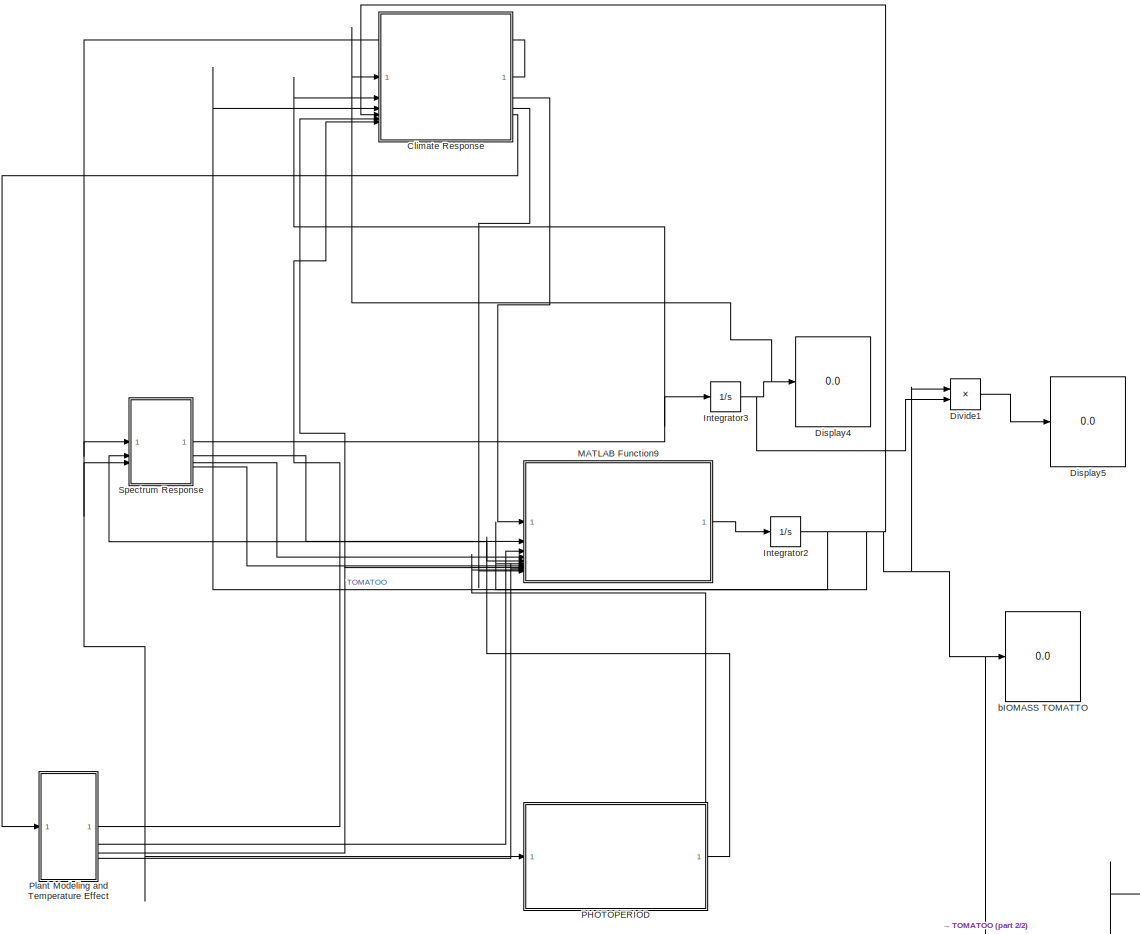
[diagram: root canvas - part 1/2, most of the canvas]
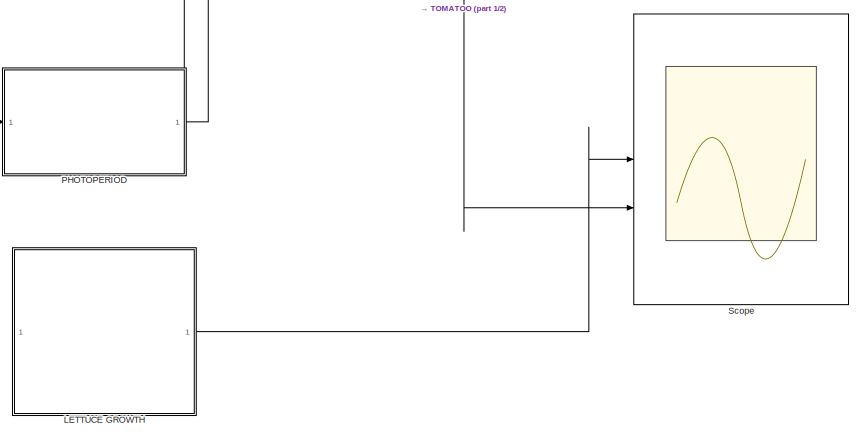
[diagram: root canvas - part 2/2, bottom right region]
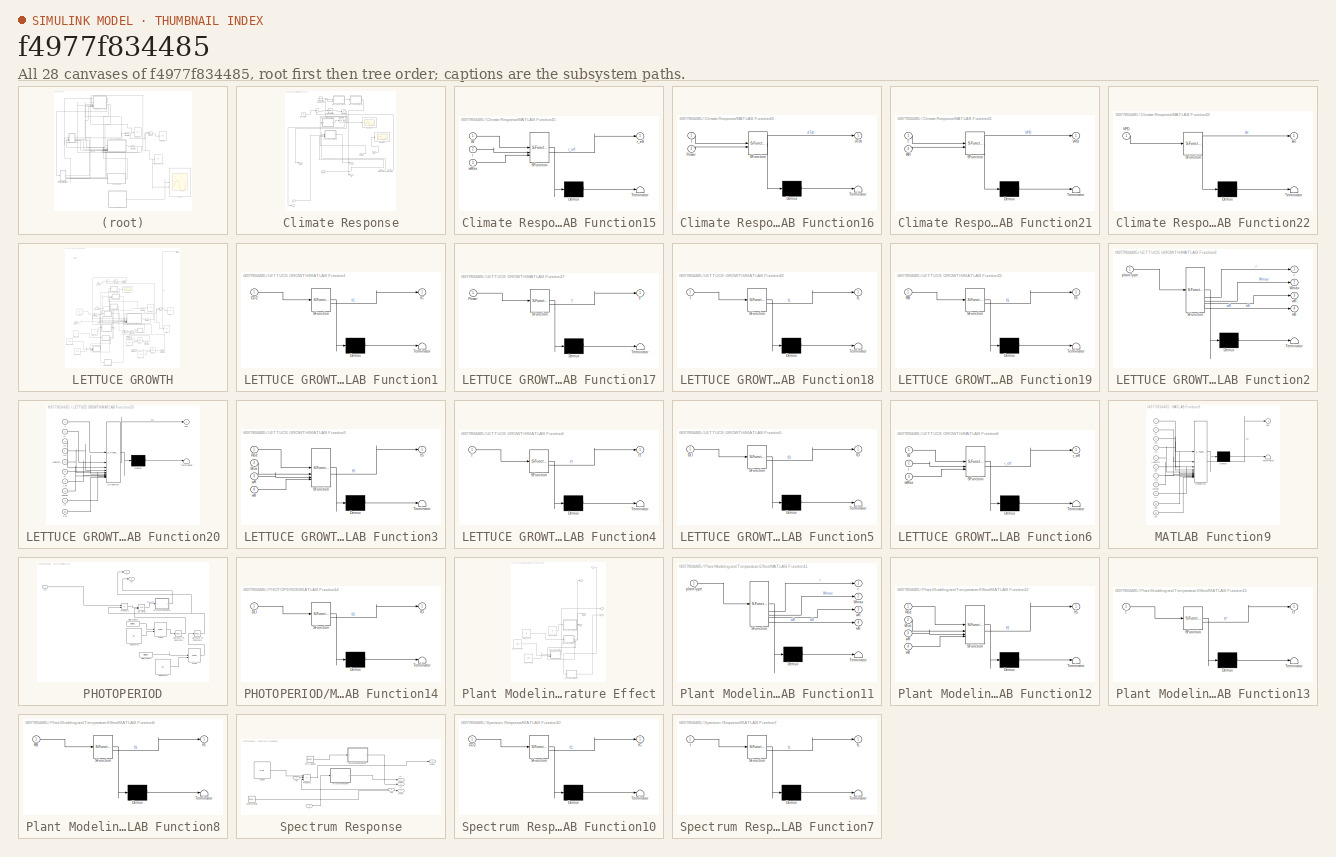
[diagram: thumbnail index - all 28 canvases of the model, root first then tree order]
MODEL slx_f4977f834485
KIND model
CONFIG AbsTol = auto
CONFIG EnableMultiTasking = off
CONFIG FixedStep = auto
CONFIG MaxStep = auto
CONFIG MinStep = auto
CONFIG RelTol = 1e-3
CONFIG SampleTimeConstraint = Unconstrained
CONFIG SolverName = ode45
CONFIG StartTime = 0.0
CONFIG StopTime = 100000
BLOCK [SubSystem] Climate Response
BLOCK [Inport] Climate Response/In1
BLOCK [Integrator] Climate Response/Integrator5
  InitialCondition = 22
BLOCK [SubSystem] Climate Response/MATLAB Function15
  ErrorFcn = Stateflow.Translate.translate
  PermitHierarchicalResolution = ExplicitOnly
  SFBlockType = MATLAB Function
  TreatAsAtomicUnit = on
BLOCK [Demux] Climate Response/MATLAB Function15/ Demux 
  Outputs = 1
BLOCK [S-Function] Climate Response/MATLAB Function15/ SFunction 
  EnableBusSupport = off
  FunctionName = sf_sfun
  PortCounts = [3 2]
  SFcnIsStateOwnerBlock = off
  SFunctionDeploymentMode = off
  Tag = Stateflow S-Function 16
BLOCK [Terminator] Climate Response/MATLAB Function15/ Terminator 
BLOCK [Inport] Climate Response/MATLAB Function15/W
BLOCK [Inport] Climate Response/MATLAB Function15/r
  Port = 2
BLOCK [Outport] Climate Response/MATLAB Function15/r_eff
BLOCK [Inport] Climate Response/MATLAB Function15/wMax
  Port = 3
BLOCK [SubSystem] Climate Response/MATLAB Function16
  ErrorFcn = Stateflow.Translate.translate
  PermitHierarchicalResolution = ExplicitOnly
  SFBlockType = MATLAB Function
  TreatAsAtomicUnit = on
BLOCK [Demux] Climate Response/MATLAB Function16/ Demux 
  Outputs = 1
BLOCK [S-Function] Climate Response/MATLAB Function16/ SFunction 
  EnableBusSupport = off
  FunctionName = sf_sfun
  PortCounts = [2 2]
  SFcnIsStateOwnerBlock = off
  SFunctionDeploymentMode = off
  Tag = Stateflow S-Function 17
BLOCK [Terminator] Climate Response/MATLAB Function16/ Terminator 
BLOCK [Inport] Climate Response/MATLAB Function16/Power
  Port = 2
BLOCK [Inport] Climate Response/MATLAB Function16/T
BLOCK [Outport] Climate Response/MATLAB Function16/dTdt
BLOCK [SubSystem] Climate Response/MATLAB Function21
  ErrorFcn = Stateflow.Translate.translate
  PermitHierarchicalResolution = ExplicitOnly
  SFBlockType = MATLAB Function
  TreatAsAtomicUnit = on
BLOCK [Demux] Climate Response/MATLAB Function21/ Demux 
  Outputs = 1
BLOCK [S-Function] Climate Response/MATLAB Function21/ SFunction 
  EnableBusSupport = off
  FunctionName = sf_sfun
  PortCounts = [2 2]
  SFcnIsStateOwnerBlock = off
  SFunctionDeploymentMode = off
  Tag = Stateflow S-Function 21
BLOCK [Terminator] Climate Response/MATLAB Function21/ Terminator 
BLOCK [Inport] Climate Response/MATLAB Function21/RH
  Port = 2
BLOCK [Inport] Climate Response/MATLAB Function21/T
BLOCK [Outport] Climate Response/MATLAB Function21/VPD
BLOCK [SubSystem] Climate Response/MATLAB Function22
  ErrorFcn = Stateflow.Translate.translate
  PermitHierarchicalResolution = ExplicitOnly
  SFBlockType = MATLAB Function
  TreatAsAtomicUnit = on
BLOCK [Demux] Climate Response/MATLAB Function22/ Demux 
  Outputs = 1
BLOCK [S-Function] Climate Response/MATLAB Function22/ SFunction 
  EnableBusSupport = off
  FunctionName = sf_sfun
  PortCounts = [1 2]
  SFcnIsStateOwnerBlock = off
  SFunctionDeploymentMode = off
  Tag = Stateflow S-Function 22
BLOCK [Terminator] Climate Response/MATLAB Function22/ Terminator 
BLOCK [Inport] Climate Response/MATLAB Function22/VPD
BLOCK [Outport] Climate Response/MATLAB Function22/fH
BLOCK [Outport] Climate Response/Out1
BLOCK [Reference] Climate Response/PID Controller  REF=slpidlib/PID Controller
  LibrarySourceBlock = simulink/Continuous/PID Controller
  SourceBlock = slpidlib/PID Controller
  SourceType = PID 1dof
BLOCK [Inport] Climate Response/Power
  Port = 2
BLOCK [Reference] Climate Response/Repeating Sequence  REF=simulink/Sources/Repeating
Sequence
  SourceBlock = simulink/Sources/Repeating\nSequence
  SourceType = Repeating table
BLOCK [Saturate] Climate Response/Saturation
BLOCK [Scope] Climate Response/Scope1
  ActiveDisplayYMaximum = 28.32565714151929
  ActiveDisplayYMinimum = 22.738000496839618
  DataLoggingVariableName = ScopeData1
  Floating = off
  GraphicalSettings = {"Style":{"BackgroundColor":[0.12941176470588237,0.12941176470588237,0.12941176470588237],"AxesColor":[0.07058823529411765,0.07058823529411765,0.07058823529411765],"LabelsColor":[0.8509803921568627,0.8509803921568627,0.8509803921568627],"PreserveColors":false,"Visible":[true],"LineStyle":["-"],"LineWidth":[1.5],"BarWidth":[0.9],"LineColor":["auto"],"LineFaceAlpha":[1],"LineEdgeAlpha":[1],"Marker":...<+2035ch>
  LayoutDimensionsString = [1,1]
  MultipleDisplayCache = [{"MaxYLimMag":28.800607956317062,"MaxYLimReal":28.32565714151929,"MinYLimMag":21.244376893742551,"MinYLimReal":22.738000496839618,"PlotAsMagnitudePhase":false,"ShowGrid":true,"ShowLegend":false,"Title":"%<SignalLabel>","YLabel":""}]
  NumInputPorts = 1
  ScopeFrameLocation = window
  WasSavedAsWebScope = on
  WindowPosition = [1.000000,49.000000,1536.000000,793.000000,]
BLOCK [Scope] Climate Response/Scope3
  ActiveDisplayYMaximum = 0.39000361099138614
  ActiveDisplayYMinimum = -0.063605341937586823
  DataLoggingVariableName = ScopeData3
  Floating = off
  GraphicalSettings = {"AxesScalingProperties":{"AlignXAxis":"Center","AlignYAxis":"Center","AutoScaleXAxisLimits":false,"AxesScaling":"Manual","AxesScalingNumUpdates":10,"ExpandOnly":true,"ScaleAxesLimitsAtStop":false,"XAxisDataRange":100,"YAxisDataRange":80},"DisplayProperties":{"ColorOrder":["auto","auto","auto","auto","auto","auto","auto","auto","auto","auto","auto","auto","auto","auto","auto","auto","auto","auto",...<+2046ch>
  LayoutDimensionsString = [1,1]
  MultipleDisplayCache = [{"MaxYLimMag":3.7799999999999443,"MaxYLimReal":0.39000361099138614,"MinYLimMag":0,"MinYLimReal":-0.063605341937586823,"PlotAsMagnitudePhase":false,"ShowGrid":true,"ShowLegend":false,"Title":"%<SignalLabel>","YLabel":""}]
  NumInputPorts = 1
  ScopeFrameLocation = window
  WasSavedAsWebScope = on
  WindowPosition = [0.000000,36.000000,1536.000000,793.000000,]
BLOCK [Sum] Climate Response/Sum
  Inputs = |+-
BLOCK [Outport] Climate Response/T
  Port = 4
BLOCK [Inport] Climate Response/TOMATOO
  Port = 3
BLOCK [Inport] Climate Response/TOMATOO1
  Port = 4
BLOCK [Constant] Climate Response/W_Target
  Value = 40
BLOCK [Outport] Climate Response/fH
  Port = 3
BLOCK [Inport] Climate Response/r
  Port = 6
BLOCK [Outport] Climate Response/r_eff
  Port = 2
BLOCK [Inport] Climate Response/wMax
  Port = 5
BLOCK [Display] Display4
  Decimation = 1
BLOCK [Display] Display5
  Decimation = 1
BLOCK [Product] Divide1
  Inputs = */
BLOCK [Integrator] Integrator2
  InitialCondition = 1
BLOCK [Integrator] Integrator3
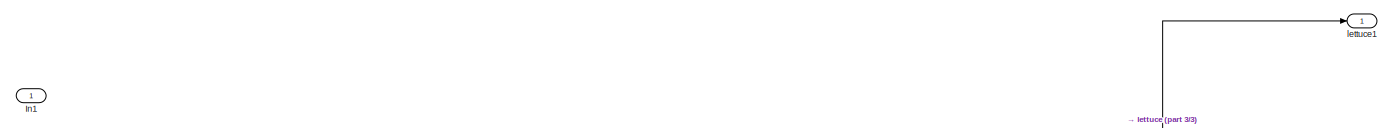
[diagram: LETTUCE GROWTH - part 1/3, full width, top band]
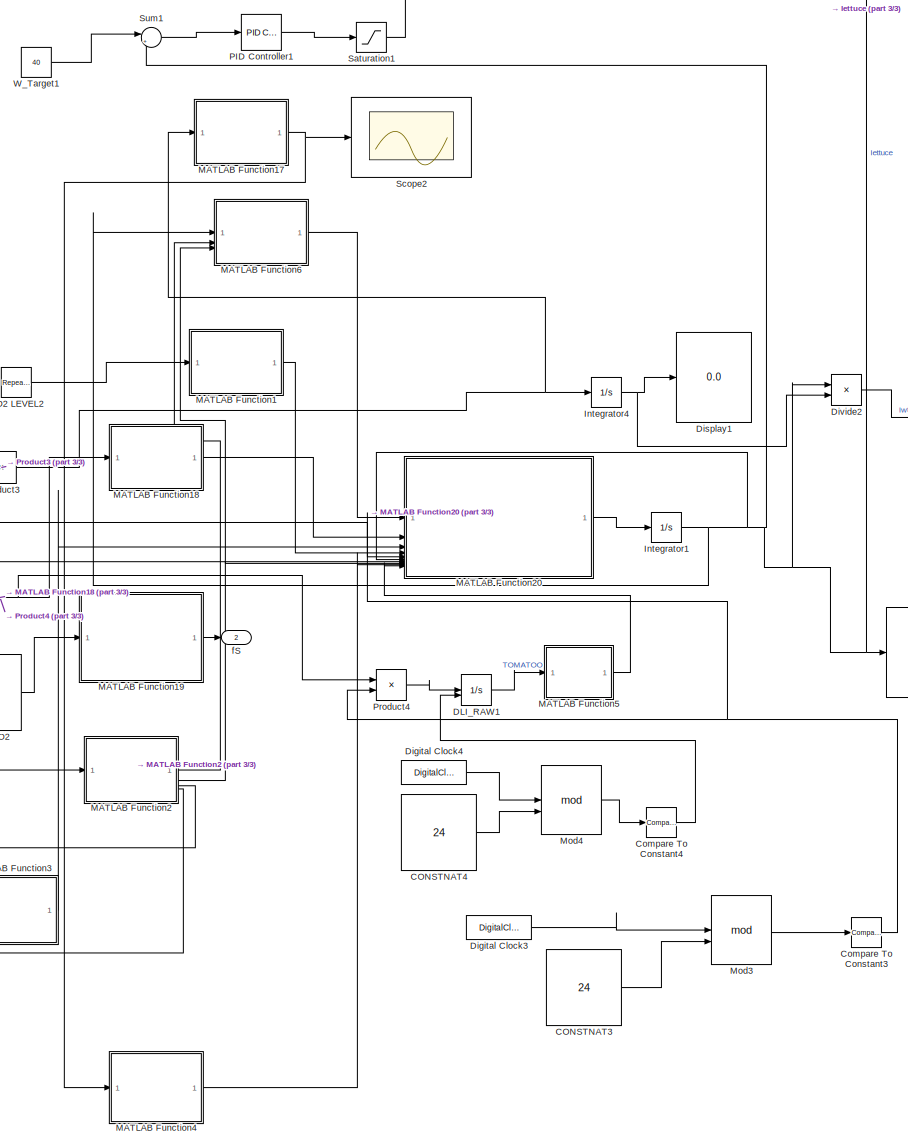
[diagram: LETTUCE GROWTH - part 2/3, center side, full height]
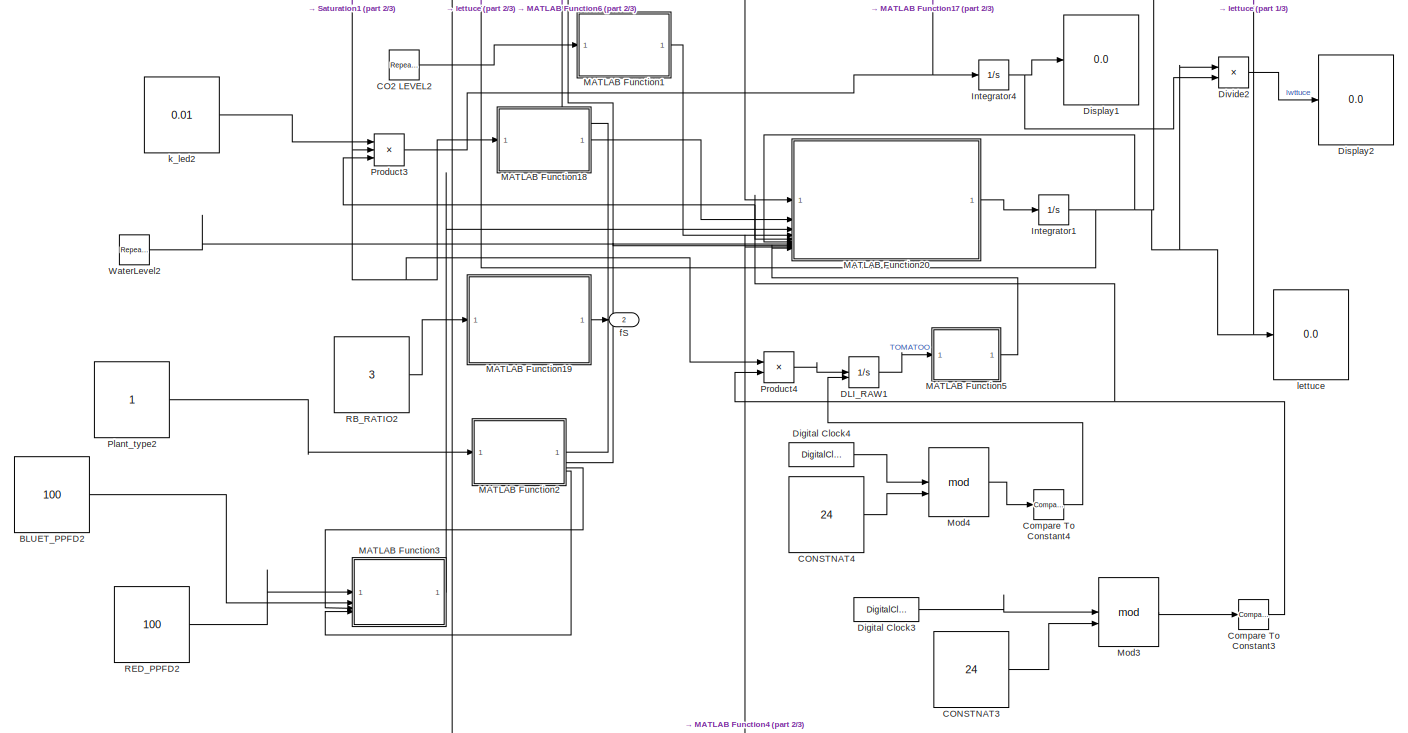
[diagram: LETTUCE GROWTH - part 3/3, full width, bottom band]
BLOCK [SubSystem] LETTUCE GROWTH
BLOCK [Constant] LETTUCE GROWTH/BLUET_PPFD2
  Value = 100
BLOCK [Reference] LETTUCE GROWTH/CO2 LEVEL2  REF=simulink/Sources/Repeating
Sequence
  SourceBlock = simulink/Sources/Repeating\nSequence
  SourceType = Repeating table
BLOCK [Constant] LETTUCE GROWTH/CONSTNAT3
  Value = 24
BLOCK [Constant] LETTUCE GROWTH/CONSTNAT4
  Value = 24
BLOCK [Reference] LETTUCE GROWTH/Compare To Constant3  REF=simulink/Logic and Bit
Operations/Compare
To Constant
  SourceBlock = simulink/Logic and Bit\nOperations/Compare\nTo Constant
  SourceType = Compare To Constant
BLOCK [Reference] LETTUCE GROWTH/Compare To Constant4  REF=simulink/Logic and Bit
Operations/Compare
To Constant
  SourceBlock = simulink/Logic and Bit\nOperations/Compare\nTo Constant
  SourceType = Compare To Constant
BLOCK [Integrator] LETTUCE GROWTH/DLI_RAW1
  ExternalReset = either
BLOCK [DigitalClock] LETTUCE GROWTH/Digital Clock3
BLOCK [DigitalClock] LETTUCE GROWTH/Digital Clock4
BLOCK [Display] LETTUCE GROWTH/Display1
  Decimation = 1
BLOCK [Display] LETTUCE GROWTH/Display2
  Decimation = 1
BLOCK [Product] LETTUCE GROWTH/Divide2
  Inputs = */
BLOCK [Inport] LETTUCE GROWTH/In1
BLOCK [Integrator] LETTUCE GROWTH/Integrator1
  InitialCondition = 1
BLOCK [Integrator] LETTUCE GROWTH/Integrator4
BLOCK [SubSystem] LETTUCE GROWTH/MATLAB Function1
  ErrorFcn = Stateflow.Translate.translate
  PermitHierarchicalResolution = ExplicitOnly
  SFBlockType = MATLAB Function
  TreatAsAtomicUnit = on
BLOCK [Demux] LETTUCE GROWTH/MATLAB Function1/ Demux 
  Outputs = 1
BLOCK [S-Function] LETTUCE GROWTH/MATLAB Function1/ SFunction 
  EnableBusSupport = off
  FunctionName = sf_sfun
  PortCounts = [1 2]
  SFcnIsStateOwnerBlock = off
  SFunctionDeploymentMode = off
  Tag = Stateflow S-Function 1
BLOCK [Terminator] LETTUCE GROWTH/MATLAB Function1/ Terminator 
BLOCK [Inport] LETTUCE GROWTH/MATLAB Function1/CO2
BLOCK [Outport] LETTUCE GROWTH/MATLAB Function1/fC
BLOCK [SubSystem] LETTUCE GROWTH/MATLAB Function17
  ErrorFcn = Stateflow.Translate.translate
  PermitHierarchicalResolution = ExplicitOnly
  SFBlockType = MATLAB Function
  TreatAsAtomicUnit = on
BLOCK [Demux] LETTUCE GROWTH/MATLAB Function17/ Demux 
  Outputs = 1
BLOCK [S-Function] LETTUCE GROWTH/MATLAB Function17/ SFunction 
  EnableBusSupport = off
  FunctionName = sf_sfun
  PortCounts = [1 2]
  SFcnIsStateOwnerBlock = off
  SFunctionDeploymentMode = off
  Tag = Stateflow S-Function 2
BLOCK [Terminator] LETTUCE GROWTH/MATLAB Function17/ Terminator 
BLOCK [Inport] LETTUCE GROWTH/MATLAB Function17/Power
BLOCK [Outport] LETTUCE GROWTH/MATLAB Function17/T
BLOCK [SubSystem] LETTUCE GROWTH/MATLAB Function18
  ErrorFcn = Stateflow.Translate.translate
  PermitHierarchicalResolution = ExplicitOnly
  SFBlockType = MATLAB Function
  TreatAsAtomicUnit = on
BLOCK [Demux] LETTUCE GROWTH/MATLAB Function18/ Demux 
  Outputs = 1
BLOCK [S-Function] LETTUCE GROWTH/MATLAB Function18/ SFunction 
  EnableBusSupport = off
  FunctionName = sf_sfun
  PortCounts = [1 2]
  SFcnIsStateOwnerBlock = off
  SFunctionDeploymentMode = off
  Tag = Stateflow S-Function 3
BLOCK [Terminator] LETTUCE GROWTH/MATLAB Function18/ Terminator 
BLOCK [Inport] LETTUCE GROWTH/MATLAB Function18/I
BLOCK [Outport] LETTUCE GROWTH/MATLAB Function18/fL
BLOCK [SubSystem] LETTUCE GROWTH/MATLAB Function19
  ErrorFcn = Stateflow.Translate.translate
  PermitHierarchicalResolution = ExplicitOnly
  SFBlockType = MATLAB Function
  TreatAsAtomicUnit = on
BLOCK [Demux] LETTUCE GROWTH/MATLAB Function19/ Demux 
  Outputs = 1
BLOCK [S-Function] LETTUCE GROWTH/MATLAB Function19/ SFunction 
  EnableBusSupport = off
  FunctionName = sf_sfun
  PortCounts = [1 2]
  SFcnIsStateOwnerBlock = off
  SFunctionDeploymentMode = off
  Tag = Stateflow S-Function 4
BLOCK [Terminator] LETTUCE GROWTH/MATLAB Function19/ Terminator 
BLOCK [Inport] LETTUCE GROWTH/MATLAB Function19/RB
BLOCK [Outport] LETTUCE GROWTH/MATLAB Function19/fS
BLOCK [SubSystem] LETTUCE GROWTH/MATLAB Function2
  ErrorFcn = Stateflow.Translate.translate
  PermitHierarchicalResolution = ExplicitOnly
  SFBlockType = MATLAB Function
  TreatAsAtomicUnit = on
BLOCK [Demux] LETTUCE GROWTH/MATLAB Function2/ Demux 
  Outputs = 1
BLOCK [S-Function] LETTUCE GROWTH/MATLAB Function2/ SFunction 
  EnableBusSupport = off
  FunctionName = sf_sfun
  PortCounts = [1 5]
  SFcnIsStateOwnerBlock = off
  SFunctionDeploymentMode = off
  Tag = Stateflow S-Function 5
BLOCK [Terminator] LETTUCE GROWTH/MATLAB Function2/ Terminator 
BLOCK [Outport] LETTUCE GROWTH/MATLAB Function2/Wmax
  Port = 2
BLOCK [Inport] LETTUCE GROWTH/MATLAB Function2/plantType
BLOCK [Outport] LETTUCE GROWTH/MATLAB Function2/r
BLOCK [Outport] LETTUCE GROWTH/MATLAB Function2/wB
  Port = 4
BLOCK [Outport] LETTUCE GROWTH/MATLAB Function2/wR
  Port = 3
BLOCK [SubSystem] LETTUCE GROWTH/MATLAB Function20
  ErrorFcn = Stateflow.Translate.translate
  PermitHierarchicalResolution = ExplicitOnly
  SFBlockType = MATLAB Function
  TreatAsAtomicUnit = on
BLOCK [Demux] LETTUCE GROWTH/MATLAB Function20/ Demux 
  Outputs = 1
BLOCK [S-Function] LETTUCE GROWTH/MATLAB Function20/ SFunction 
  EnableBusSupport = off
  FunctionName = sf_sfun
  PortCounts = [10 2]
  SFcnIsStateOwnerBlock = off
  SFunctionDeploymentMode = off
  Tag = Stateflow S-Function 6
BLOCK [Terminator] LETTUCE GROWTH/MATLAB Function20/ Terminator 
BLOCK [Inport] LETTUCE GROWTH/MATLAB Function20/FD
  Port = 10
BLOCK [Inport] LETTUCE GROWTH/MATLAB Function20/W
  Port = 6
BLOCK [Inport] LETTUCE GROWTH/MATLAB Function20/Wmax
  Port = 8
BLOCK [Outport] LETTUCE GROWTH/MATLAB Function20/dW
BLOCK [Inport] LETTUCE GROWTH/MATLAB Function20/fC
  Port = 4
BLOCK [Inport] LETTUCE GROWTH/MATLAB Function20/fL
  Port = 2
BLOCK [Inport] LETTUCE GROWTH/MATLAB Function20/fS
  Port = 3
BLOCK [Inport] LETTUCE GROWTH/MATLAB Function20/fT
  Port = 9
BLOCK [Inport] LETTUCE GROWTH/MATLAB Function20/f_w
  Port = 7
BLOCK [Inport] LETTUCE GROWTH/MATLAB Function20/lightOn
  Port = 5
BLOCK [Inport] LETTUCE GROWTH/MATLAB Function20/r
BLOCK [SubSystem] LETTUCE GROWTH/MATLAB Function3
  ErrorFcn = Stateflow.Translate.translate
  PermitHierarchicalResolution = ExplicitOnly
  SFBlockType = MATLAB Function
  TreatAsAtomicUnit = on
BLOCK [Demux] LETTUCE GROWTH/MATLAB Function3/ Demux 
  Outputs = 1
BLOCK [S-Function] LETTUCE GROWTH/MATLAB Function3/ SFunction 
  EnableBusSupport = off
  FunctionName = sf_sfun
  PortCounts = [4 2]
  SFcnIsStateOwnerBlock = off
  SFunctionDeploymentMode = off
  Tag = Stateflow S-Function 7
BLOCK [Terminator] LETTUCE GROWTH/MATLAB Function3/ Terminator 
BLOCK [Inport] LETTUCE GROWTH/MATLAB Function3/Blue
  Port = 2
BLOCK [Inport] LETTUCE GROWTH/MATLAB Function3/Red
BLOCK [Outport] LETTUCE GROWTH/MATLAB Function3/fS
BLOCK [Inport] LETTUCE GROWTH/MATLAB Function3/wB
  Port = 4
BLOCK [Inport] LETTUCE GROWTH/MATLAB Function3/wR
  Port = 3
BLOCK [SubSystem] LETTUCE GROWTH/MATLAB Function4
  ErrorFcn = Stateflow.Translate.translate
  PermitHierarchicalResolution = ExplicitOnly
  SFBlockType = MATLAB Function
  TreatAsAtomicUnit = on
BLOCK [Demux] LETTUCE GROWTH/MATLAB Function4/ Demux 
  Outputs = 1
BLOCK [S-Function] LETTUCE GROWTH/MATLAB Function4/ SFunction 
  EnableBusSupport = off
  FunctionName = sf_sfun
  PortCounts = [1 2]
  SFcnIsStateOwnerBlock = off
  SFunctionDeploymentMode = off
  Tag = Stateflow S-Function 18
BLOCK [Terminator] LETTUCE GROWTH/MATLAB Function4/ Terminator 
BLOCK [Inport] LETTUCE GROWTH/MATLAB Function4/T
BLOCK [Outport] LETTUCE GROWTH/MATLAB Function4/fT
BLOCK [SubSystem] LETTUCE GROWTH/MATLAB Function5
  ErrorFcn = Stateflow.Translate.translate
  PermitHierarchicalResolution = ExplicitOnly
  SFBlockType = MATLAB Function
  TreatAsAtomicUnit = on
BLOCK [Demux] LETTUCE GROWTH/MATLAB Function5/ Demux 
  Outputs = 1
BLOCK [S-Function] LETTUCE GROWTH/MATLAB Function5/ SFunction 
  EnableBusSupport = off
  FunctionName = sf_sfun
  PortCounts = [1 2]
  SFcnIsStateOwnerBlock = off
  SFunctionDeploymentMode = off
  Tag = Stateflow S-Function 19
BLOCK [Terminator] LETTUCE GROWTH/MATLAB Function5/ Terminator 
BLOCK [Inport] LETTUCE GROWTH/MATLAB Function5/DLI
BLOCK [Outport] LETTUCE GROWTH/MATLAB Function5/fD
BLOCK [SubSystem] LETTUCE GROWTH/MATLAB Function6
  ErrorFcn = Stateflow.Translate.translate
  PermitHierarchicalResolution = ExplicitOnly
  SFBlockType = MATLAB Function
  TreatAsAtomicUnit = on
BLOCK [Demux] LETTUCE GROWTH/MATLAB Function6/ Demux 
  Outputs = 1
BLOCK [S-Function] LETTUCE GROWTH/MATLAB Function6/ SFunction 
  EnableBusSupport = off
  FunctionName = sf_sfun
  PortCounts = [3 2]
  SFcnIsStateOwnerBlock = off
  SFunctionDeploymentMode = off
  Tag = Stateflow S-Function 20
BLOCK [Terminator] LETTUCE GROWTH/MATLAB Function6/ Terminator 
BLOCK [Inport] LETTUCE GROWTH/MATLAB Function6/W
BLOCK [Inport] LETTUCE GROWTH/MATLAB Function6/r
  Port = 2
BLOCK [Outport] LETTUCE GROWTH/MATLAB Function6/r_eff
BLOCK [Inport] LETTUCE GROWTH/MATLAB Function6/wMax
  Port = 3
BLOCK [Math] LETTUCE GROWTH/Mod3
  Operator = mod
BLOCK [Math] LETTUCE GROWTH/Mod4
  Operator = mod
BLOCK [Reference] LETTUCE GROWTH/PID Controller1  REF=slpidlib/PID Controller
  LibrarySourceBlock = simulink/Continuous/PID Controller
  SourceBlock = slpidlib/PID Controller
  SourceType = PID 1dof
BLOCK [Constant] LETTUCE GROWTH/Plant_type2
BLOCK [Product] LETTUCE GROWTH/Product3
  Inputs = 3
BLOCK [Product] LETTUCE GROWTH/Product4
BLOCK [Constant] LETTUCE GROWTH/RB_RATIO2
  Value = 3
BLOCK [Constant] LETTUCE GROWTH/RED_PPFD2
  Value = 100
BLOCK [Saturate] LETTUCE GROWTH/Saturation1
BLOCK [Scope] LETTUCE GROWTH/Scope2
  ActiveDisplayYMaximum = 67
  ActiveDisplayYMinimum = 17
  DataLoggingVariableName = ScopeData2
  Floating = off
  GraphicalSettings = {"Style":{"BackgroundColor":[0.12941176470588237,0.12941176470588237,0.12941176470588237],"AxesColor":[0.07058823529411765,0.07058823529411765,0.07058823529411765],"LabelsColor":[0.8509803921568627,0.8509803921568627,0.8509803921568627],"PreserveColors":false,"Visible":[true],"LineStyle":["-"],"LineWidth":[1.5],"BarWidth":[0.9],"LineColor":["auto"],"LineFaceAlpha":[1],"LineEdgeAlpha":[1],"Marker":...<+1923ch>
  LayoutDimensionsString = [1,1]
  MultipleDisplayCache = [{"MaxYLimMag":67,"MaxYLimReal":67,"MinYLimMag":17,"MinYLimReal":17,"PlotAsMagnitudePhase":false,"ShowGrid":true,"ShowLegend":false,"Title":"%<SignalLabel>","YLabel":""}]
  NumInputPorts = 1
  ScopeFrameLocation = window
  WasSavedAsWebScope = on
  WindowPosition = [0.000000,36.000000,1536.000000,793.000000,]
BLOCK [Sum] LETTUCE GROWTH/Sum1
  Inputs = |+-
BLOCK [Constant] LETTUCE GROWTH/W_Target1
  Value = 40
BLOCK [Reference] LETTUCE GROWTH/WaterLevel2  REF=simulink/Sources/Repeating
Sequence
  SourceBlock = simulink/Sources/Repeating\nSequence
  SourceType = Repeating table
BLOCK [Outport] LETTUCE GROWTH/fS
  Port = 2
BLOCK [Constant] LETTUCE GROWTH/k_led2
  Value = 0.01
BLOCK [Display] LETTUCE GROWTH/lettuce
  Decimation = 1
BLOCK [Outport] LETTUCE GROWTH/lettuce1
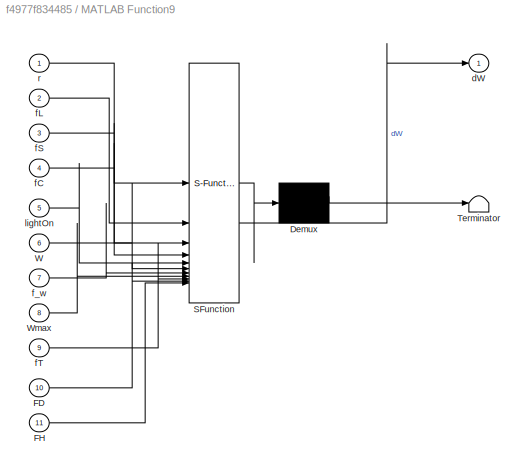
BLOCK [SubSystem] MATLAB Function9
  ErrorFcn = Stateflow.Translate.translate
  PermitHierarchicalResolution = ExplicitOnly
  SFBlockType = MATLAB Function
  TreatAsAtomicUnit = on
BLOCK [Demux] MATLAB Function9/ Demux 
  Outputs = 1
BLOCK [S-Function] MATLAB Function9/ SFunction 
  EnableBusSupport = off
  FunctionName = sf_sfun
  PortCounts = [11 2]
  SFcnIsStateOwnerBlock = off
  SFunctionDeploymentMode = off
  Tag = Stateflow S-Function 14
BLOCK [Terminator] MATLAB Function9/ Terminator 
BLOCK [Inport] MATLAB Function9/FD
  Port = 10
BLOCK [Inport] MATLAB Function9/FH
  Port = 11
BLOCK [Inport] MATLAB Function9/W
  Port = 6
BLOCK [Inport] MATLAB Function9/Wmax
  Port = 8
BLOCK [Outport] MATLAB Function9/dW
BLOCK [Inport] MATLAB Function9/fC
  Port = 4
BLOCK [Inport] MATLAB Function9/fL
  Port = 2
BLOCK [Inport] MATLAB Function9/fS
  Port = 3
BLOCK [Inport] MATLAB Function9/fT
  Port = 9
BLOCK [Inport] MATLAB Function9/f_w
  Port = 7
BLOCK [Inport] MATLAB Function9/lightOn
  Port = 5
BLOCK [Inport] MATLAB Function9/r
BLOCK [SubSystem] PHOTOPERIOD
BLOCK [Constant] PHOTOPERIOD/CONSTNAT1
  Value = 24
BLOCK [Constant] PHOTOPERIOD/CONSTNAT2
  Value = 24
BLOCK [Reference] PHOTOPERIOD/Compare To Constant1  REF=simulink/Logic and Bit
Operations/Compare
To Constant
  SourceBlock = simulink/Logic and Bit\nOperations/Compare\nTo Constant
  SourceType = Compare To Constant
BLOCK [Reference] PHOTOPERIOD/Compare To Constant2  REF=simulink/Logic and Bit
Operations/Compare
To Constant
  SourceBlock = simulink/Logic and Bit\nOperations/Compare\nTo Constant
  SourceType = Compare To Constant
BLOCK [Integrator] PHOTOPERIOD/DLI_RAW
  ExternalReset = either
BLOCK [DigitalClock] PHOTOPERIOD/Digital Clock1
BLOCK [DigitalClock] PHOTOPERIOD/Digital Clock2
BLOCK [Inport] PHOTOPERIOD/In1
BLOCK [SubSystem] PHOTOPERIOD/MATLAB Function14
  ErrorFcn = Stateflow.Translate.translate
  PermitHierarchicalResolution = ExplicitOnly
  SFBlockType = MATLAB Function
  TreatAsAtomicUnit = on
BLOCK [Demux] PHOTOPERIOD/MATLAB Function14/ Demux 
  Outputs = 1
BLOCK [S-Function] PHOTOPERIOD/MATLAB Function14/ SFunction 
  EnableBusSupport = off
  FunctionName = sf_sfun
  PortCounts = [1 2]
  SFcnIsStateOwnerBlock = off
  SFunctionDeploymentMode = off
  Tag = Stateflow S-Function 15
BLOCK [Terminator] PHOTOPERIOD/MATLAB Function14/ Terminator 
BLOCK [Inport] PHOTOPERIOD/MATLAB Function14/DLI
BLOCK [Outport] PHOTOPERIOD/MATLAB Function14/fD
BLOCK [Math] PHOTOPERIOD/Mod1
  Operator = mod
BLOCK [Math] PHOTOPERIOD/Mod2
  Operator = mod
BLOCK [Product] PHOTOPERIOD/Product2
BLOCK [Outport] PHOTOPERIOD/fD
  Port = 2
BLOCK [Outport] PHOTOPERIOD/y
BLOCK [SubSystem] Plant Modeling and Temperature Effect
BLOCK [Constant] Plant Modeling and Temperature Effect/BLUET_PPFD1
  Value = 100
BLOCK [SubSystem] Plant Modeling and Temperature Effect/MATLAB Function11
  ErrorFcn = Stateflow.Translate.translate
  PermitHierarchicalResolution = ExplicitOnly
  SFBlockType = MATLAB Function
  TreatAsAtomicUnit = on
BLOCK [Demux] Plant Modeling and Temperature Effect/MATLAB Function11/ Demux 
  Outputs = 1
BLOCK [S-Function] Plant Modeling and Temperature Effect/MATLAB Function11/ SFunction 
  EnableBusSupport = off
  FunctionName = sf_sfun
  PortCounts = [1 5]
  SFcnIsStateOwnerBlock = off
  SFunctionDeploymentMode = off
  Tag = Stateflow S-Function 9
BLOCK [Terminator] Plant Modeling and Temperature Effect/MATLAB Function11/ Terminator 
BLOCK [Outport] Plant Modeling and Temperature Effect/MATLAB Function11/Wmax
  Port = 2
BLOCK [Inport] Plant Modeling and Temperature Effect/MATLAB Function11/plantType
BLOCK [Outport] Plant Modeling and Temperature Effect/MATLAB Function11/r
BLOCK [Outport] Plant Modeling and Temperature Effect/MATLAB Function11/wB
  Port = 4
BLOCK [Outport] Plant Modeling and Temperature Effect/MATLAB Function11/wR
  Port = 3
BLOCK [SubSystem] Plant Modeling and Temperature Effect/MATLAB Function12
  ErrorFcn = Stateflow.Translate.translate
  PermitHierarchicalResolution = ExplicitOnly
  SFBlockType = MATLAB Function
  TreatAsAtomicUnit = on
BLOCK [Demux] Plant Modeling and Temperature Effect/MATLAB Function12/ Demux 
  Outputs = 1
BLOCK [S-Function] Plant Modeling and Temperature Effect/MATLAB Function12/ SFunction 
  EnableBusSupport = off
  FunctionName = sf_sfun
  PortCounts = [4 2]
  SFcnIsStateOwnerBlock = off
  SFunctionDeploymentMode = off
  Tag = Stateflow S-Function 10
BLOCK [Terminator] Plant Modeling and Temperature Effect/MATLAB Function12/ Terminator 
BLOCK [Inport] Plant Modeling and Temperature Effect/MATLAB Function12/Blue
  Port = 2
BLOCK [Inport] Plant Modeling and Temperature Effect/MATLAB Function12/Red
BLOCK [Outport] Plant Modeling and Temperature Effect/MATLAB Function12/fS
BLOCK [Inport] Plant Modeling and Temperature Effect/MATLAB Function12/wB
  Port = 4
BLOCK [Inport] Plant Modeling and Temperature Effect/MATLAB Function12/wR
  Port = 3
BLOCK [SubSystem] Plant Modeling and Temperature Effect/MATLAB Function13
  ErrorFcn = Stateflow.Translate.translate
  PermitHierarchicalResolution = ExplicitOnly
  SFBlockType = MATLAB Function
  TreatAsAtomicUnit = on
BLOCK [Demux] Plant Modeling and Temperature Effect/MATLAB Function13/ Demux 
  Outputs = 1
BLOCK [S-Function] Plant Modeling and Temperature Effect/MATLAB Function13/ SFunction 
  EnableBusSupport = off
  FunctionName = sf_sfun
  PortCounts = [1 2]
  SFcnIsStateOwnerBlock = off
  SFunctionDeploymentMode = off
  Tag = Stateflow S-Function 11
BLOCK [Terminator] Plant Modeling and Temperature Effect/MATLAB Function13/ Terminator 
BLOCK [Inport] Plant Modeling and Temperature Effect/MATLAB Function13/T
BLOCK [Outport] Plant Modeling and Temperature Effect/MATLAB Function13/fT
BLOCK [SubSystem] Plant Modeling and Temperature Effect/MATLAB Function8
  ErrorFcn = Stateflow.Translate.translate
  PermitHierarchicalResolution = ExplicitOnly
  SFBlockType = MATLAB Function
  TreatAsAtomicUnit = on
BLOCK [Demux] Plant Modeling and Temperature Effect/MATLAB Function8/ Demux 
  Outputs = 1
BLOCK [S-Function] Plant Modeling and Temperature Effect/MATLAB Function8/ SFunction 
  EnableBusSupport = off
  FunctionName = sf_sfun
  PortCounts = [1 2]
  SFcnIsStateOwnerBlock = off
  SFunctionDeploymentMode = off
  Tag = Stateflow S-Function 13
BLOCK [Terminator] Plant Modeling and Temperature Effect/MATLAB Function8/ Terminator 
BLOCK [Inport] Plant Modeling and Temperature Effect/MATLAB Function8/RB
BLOCK [Outport] Plant Modeling and Temperature Effect/MATLAB Function8/fS
BLOCK [Constant] Plant Modeling and Temperature Effect/Plant_type1
  Value = 2
BLOCK [Constant] Plant Modeling and Temperature Effect/RB_RATIO1
  Value = 3
BLOCK [Constant] Plant Modeling and Temperature Effect/RED_PPFD1
  Value = 100
BLOCK [Inport] Plant Modeling and Temperature Effect/T
BLOCK [Outport] Plant Modeling and Temperature Effect/Wmax
  Port = 3
BLOCK [Outport] Plant Modeling and Temperature Effect/fS
  Port = 2
BLOCK [Outport] Plant Modeling and Temperature Effect/fS1
  Port = 5
BLOCK [Outport] Plant Modeling and Temperature Effect/fT
  Port = 4
BLOCK [Outport] Plant Modeling and Temperature Effect/r
BLOCK [Scope] Scope
  ActiveDisplayYMaximum = 1.0260918747727719
  ActiveDisplayYMinimum = 0.99710090280302532
  Floating = off
  GraphicalSettings = {"Style":{"BackgroundColor":[0.12941176470588237,0.12941176470588237,0.12941176470588237],"AxesColor":[0.07058823529411765,0.07058823529411765,0.07058823529411765],"LabelsColor":[0.8509803921568627,0.8509803921568627,0.8509803921568627],"PreserveColors":false,"Visible":[true,true],"LineStyle":["-","-"],"LineWidth":[1.5,1.5],"BarWidth":[0.9,0.9],"LineColor":["auto","auto"],"LineFaceAlpha":[1,1],"Li...<+2508ch>
  LayoutDimensionsString = [1,2]
  MultipleDisplayCache = [{"MaxYLimMag":1.0260918747727719,"MaxYLimReal":1.0260918747727719,"MinYLimMag":0.99710090280302532,"MinYLimReal":0.99710090280302532,"PlotAsMagnitudePhase":false,"ShowGrid":true,"ShowLegend":false,"Title":"%<SignalLabel>","YLabel":""},{"MaxYLimMag":1.0111139610649684,"MaxYLimReal":1.0111139610649684,"MinYLimMag":0.99876511543722579,"MinYLimReal":0.99876511543722579,"PlotAsMagnitudePhase":false,"S...<+71ch>
  NumInputPorts = 2
  ScopeFrameLocation = window
  WasSavedAsWebScope = on
  WindowPosition = [1.000000,49.000000,1536.000000,793.000000,]
BLOCK [SubSystem] Spectrum Response
BLOCK [Reference] Spectrum Response/CO2 LEVEL1  REF=simulink/Sources/Repeating
Sequence
  SourceBlock = simulink/Sources/Repeating\nSequence
  SourceType = Repeating table
BLOCK [Inport] Spectrum Response/I
  Port = 3
BLOCK [Inport] Spectrum Response/In1
BLOCK [Inport] Spectrum Response/In2
  Port = 2
BLOCK [SubSystem] Spectrum Response/MATLAB Function10
  ErrorFcn = Stateflow.Translate.translate
  PermitHierarchicalResolution = ExplicitOnly
  SFBlockType = MATLAB Function
  TreatAsAtomicUnit = on
BLOCK [Demux] Spectrum Response/MATLAB Function10/ Demux 
  Outputs = 1
BLOCK [S-Function] Spectrum Response/MATLAB Function10/ SFunction 
  EnableBusSupport = off
  FunctionName = sf_sfun
  PortCounts = [1 2]
  SFcnIsStateOwnerBlock = off
  SFunctionDeploymentMode = off
  Tag = Stateflow S-Function 8
BLOCK [Terminator] Spectrum Response/MATLAB Function10/ Terminator 
BLOCK [Inport] Spectrum Response/MATLAB Function10/CO2
BLOCK [Outport] Spectrum Response/MATLAB Function10/fC
BLOCK [SubSystem] Spectrum Response/MATLAB Function7
  ErrorFcn = Stateflow.Translate.translate
  PermitHierarchicalResolution = ExplicitOnly
  SFBlockType = MATLAB Function
  TreatAsAtomicUnit = on
BLOCK [Demux] Spectrum Response/MATLAB Function7/ Demux 
  Outputs = 1
BLOCK [S-Function] Spectrum Response/MATLAB Function7/ SFunction 
  EnableBusSupport = off
  FunctionName = sf_sfun
  PortCounts = [1 2]
  SFcnIsStateOwnerBlock = off
  SFunctionDeploymentMode = off
  Tag = Stateflow S-Function 12
BLOCK [Terminator] Spectrum Response/MATLAB Function7/ Terminator 
BLOCK [Inport] Spectrum Response/MATLAB Function7/I
BLOCK [Outport] Spectrum Response/MATLAB Function7/fL
BLOCK [Outport] Spectrum Response/Out1
BLOCK [Outport] Spectrum Response/Out4
  Port = 4
BLOCK [Product] Spectrum Response/Product1
  Inputs = 3
BLOCK [Reference] Spectrum Response/WaterLevel1  REF=simulink/Sources/Repeating
Sequence
  SourceBlock = simulink/Sources/Repeating\nSequence
  SourceType = Repeating table
BLOCK [Outport] Spectrum Response/fC
  Port = 3
BLOCK [Outport] Spectrum Response/fL
  Port = 2
BLOCK [Constant] Spectrum Response/k_led1
  Value = 0.01
BLOCK [Display] bIOMASS TOMATTO
  Decimation = 1
LINE Climate Response/In1:1 -> Climate Response/Scope3:1
NET Climate Response/Integrator5:1 -> Climate Response/MATLAB Function16:1, Climate Response/MATLAB Function21:1, Climate Response/Scope1:1, Climate Response/T:1
LINE Climate Response/MATLAB Function15:1 -> Climate Response/r_eff:1
LINE Climate Response/MATLAB Function16:1 -> Climate Response/Integrator5:1
LINE Climate Response/MATLAB Function21:1 -> Climate Response/MATLAB Function22:1
LINE Climate Response/MATLAB Function22:1 -> Climate Response/fH:1
LINE Climate Response/PID Controller:1 -> Climate Response/Saturation:1
LINE Climate Response/Power:1 -> Climate Response/MATLAB Function16:2
LINE Climate Response/Repeating Sequence:1 -> Climate Response/MATLAB Function21:2
LINE Climate Response/Saturation:1 -> Climate Response/Out1:1
LINE Climate Response/Sum:1 -> Climate Response/PID Controller:1
LINE Climate Response/TOMATOO1:1 -> Climate Response/Sum:2
LINE Climate Response/TOMATOO:1 -> Climate Response/MATLAB Function15:1
LINE Climate Response/W_Target:1 -> Climate Response/Sum:1
LINE Climate Response/r:1 -> Climate Response/MATLAB Function15:2
LINE Climate Response/wMax:1 -> Climate Response/MATLAB Function15:3
NET Climate Response:1 -> PHOTOPERIOD:1, Spectrum Response:1, Spectrum Response:3
LINE Climate Response:2 -> MATLAB Function9:1
LINE Climate Response:3 -> MATLAB Function9:11
LINE Climate Response:4 -> Plant Modeling and Temperature Effect:1
LINE Divide1:1 -> Display5:1
NET Integrator2:1 -> Climate Response:3, Climate Response:4, Divide1:1, MATLAB Function9:6, Scope:2, bIOMASS TOMATTO:1
NET Integrator3:1 -> Climate Response:1, Display4:1, Divide1:2
LINE LETTUCE GROWTH/BLUET_PPFD2:1 -> LETTUCE GROWTH/MATLAB Function3:2
LINE LETTUCE GROWTH/CO2 LEVEL2:1 -> LETTUCE GROWTH/MATLAB Function1:1
LINE LETTUCE GROWTH/CONSTNAT3:1 -> LETTUCE GROWTH/Mod3:2
LINE LETTUCE GROWTH/CONSTNAT4:1 -> LETTUCE GROWTH/Mod4:2
NET LETTUCE GROWTH/Compare To Constant3:1 -> LETTUCE GROWTH/MATLAB Function20:5, LETTUCE GROWTH/Product3:3, LETTUCE GROWTH/Product4:2
LINE LETTUCE GROWTH/Compare To Constant4:1 -> LETTUCE GROWTH/DLI_RAW1:2
LINE LETTUCE GROWTH/DLI_RAW1:1 -> LETTUCE GROWTH/MATLAB Function5:1
LINE LETTUCE GROWTH/Digital Clock3:1 -> LETTUCE GROWTH/Mod3:1
LINE LETTUCE GROWTH/Digital Clock4:1 -> LETTUCE GROWTH/Mod4:1
LINE LETTUCE GROWTH/Divide2:1 -> LETTUCE GROWTH/Display2:1
NET LETTUCE GROWTH/Integrator1:1 -> LETTUCE GROWTH/Divide2:1, LETTUCE GROWTH/MATLAB Function20:6, LETTUCE GROWTH/MATLAB Function6:1, LETTUCE GROWTH/Sum1:2, LETTUCE GROWTH/lettuce1:1, LETTUCE GROWTH/lettuce:1
NET LETTUCE GROWTH/Integrator4:1 -> LETTUCE GROWTH/Display1:1, LETTUCE GROWTH/Divide2:2
NET LETTUCE GROWTH/MATLAB Function17:1 -> LETTUCE GROWTH/MATLAB Function4:1, LETTUCE GROWTH/Scope2:1
LINE LETTUCE GROWTH/MATLAB Function18:1 -> LETTUCE GROWTH/MATLAB Function20:2
LINE LETTUCE GROWTH/MATLAB Function19:1 -> LETTUCE GROWTH/fS:1
LINE LETTUCE GROWTH/MATLAB Function1:1 -> LETTUCE GROWTH/MATLAB Function20:4
LINE LETTUCE GROWTH/MATLAB Function20:1 -> LETTUCE GROWTH/Integrator1:1
LINE LETTUCE GROWTH/MATLAB Function2:1 -> LETTUCE GROWTH/MATLAB Function6:2
NET LETTUCE GROWTH/MATLAB Function2:2 -> LETTUCE GROWTH/MATLAB Function20:8, LETTUCE GROWTH/MATLAB Function6:3
LINE LETTUCE GROWTH/MATLAB Function2:3 -> LETTUCE GROWTH/MATLAB Function3:3
LINE LETTUCE GROWTH/MATLAB Function2:4 -> LETTUCE GROWTH/MATLAB Function3:4
LINE LETTUCE GROWTH/MATLAB Function3:1 -> LETTUCE GROWTH/MATLAB Function20:3
LINE LETTUCE GROWTH/MATLAB Function4:1 -> LETTUCE GROWTH/MATLAB Function20:9
LINE LETTUCE GROWTH/MATLAB Function5:1 -> LETTUCE GROWTH/MATLAB Function20:10
LINE LETTUCE GROWTH/MATLAB Function6:1 -> LETTUCE GROWTH/MATLAB Function20:1
LINE LETTUCE GROWTH/Mod3:1 -> LETTUCE GROWTH/Compare To Constant3:1
LINE LETTUCE GROWTH/Mod4:1 -> LETTUCE GROWTH/Compare To Constant4:1
LINE LETTUCE GROWTH/PID Controller1:1 -> LETTUCE GROWTH/Saturation1:1
LINE LETTUCE GROWTH/Plant_type2:1 -> LETTUCE GROWTH/MATLAB Function2:1
NET LETTUCE GROWTH/Product3:1 -> LETTUCE GROWTH/Integrator4:1, LETTUCE GROWTH/MATLAB Function17:1
LINE LETTUCE GROWTH/Product4:1 -> LETTUCE GROWTH/DLI_RAW1:1
LINE LETTUCE GROWTH/RB_RATIO2:1 -> LETTUCE GROWTH/MATLAB Function19:1
LINE LETTUCE GROWTH/RED_PPFD2:1 -> LETTUCE GROWTH/MATLAB Function3:1
NET LETTUCE GROWTH/Saturation1:1 -> LETTUCE GROWTH/MATLAB Function18:1, LETTUCE GROWTH/Product3:2, LETTUCE GROWTH/Product4:1
LINE LETTUCE GROWTH/Sum1:1 -> LETTUCE GROWTH/PID Controller1:1
LINE LETTUCE GROWTH/W_Target1:1 -> LETTUCE GROWTH/Sum1:1
LINE LETTUCE GROWTH/WaterLevel2:1 -> LETTUCE GROWTH/MATLAB Function20:7
LINE LETTUCE GROWTH/k_led2:1 -> LETTUCE GROWTH/Product3:1
LINE LETTUCE GROWTH:1 -> Scope:1
LINE MATLAB Function9:1 -> Integrator2:1
LINE PHOTOPERIOD/CONSTNAT1:1 -> PHOTOPERIOD/Mod1:2
LINE PHOTOPERIOD/CONSTNAT2:1 -> PHOTOPERIOD/Mod2:2
NET PHOTOPERIOD/Compare To Constant1:1 -> PHOTOPERIOD/Product2:2, PHOTOPERIOD/y:1
LINE PHOTOPERIOD/Compare To Constant2:1 -> PHOTOPERIOD/DLI_RAW:2
LINE PHOTOPERIOD/DLI_RAW:1 -> PHOTOPERIOD/MATLAB Function14:1
LINE PHOTOPERIOD/Digital Clock1:1 -> PHOTOPERIOD/Mod1:1
LINE PHOTOPERIOD/Digital Clock2:1 -> PHOTOPERIOD/Mod2:1
LINE PHOTOPERIOD/In1:1 -> PHOTOPERIOD/Product2:1
LINE PHOTOPERIOD/MATLAB Function14:1 -> PHOTOPERIOD/fD:1
LINE PHOTOPERIOD/Mod1:1 -> PHOTOPERIOD/Compare To Constant1:1
LINE PHOTOPERIOD/Mod2:1 -> PHOTOPERIOD/Compare To Constant2:1
LINE PHOTOPERIOD/Product2:1 -> PHOTOPERIOD/DLI_RAW:1
NET PHOTOPERIOD:1 -> MATLAB Function9:5, Spectrum Response:2
LINE PHOTOPERIOD:2 -> MATLAB Function9:10
LINE Plant Modeling and Temperature Effect/BLUET_PPFD1:1 -> Plant Modeling and Temperature Effect/MATLAB Function12:2
LINE Plant Modeling and Temperature Effect/MATLAB Function11:1 -> Plant Modeling and Temperature Effect/r:1
LINE Plant Modeling and Temperature Effect/MATLAB Function11:2 -> Plant Modeling and Temperature Effect/Wmax:1
LINE Plant Modeling and Temperature Effect/MATLAB Function11:3 -> Plant Modeling and Temperature Effect/MATLAB Function12:3
LINE Plant Modeling and Temperature Effect/MATLAB Function11:4 -> Plant Modeling and Temperature Effect/MATLAB Function12:4
LINE Plant Modeling and Temperature Effect/MATLAB Function12:1 -> Plant Modeling and Temperature Effect/fS:1
LINE Plant Modeling and Temperature Effect/MATLAB Function13:1 -> Plant Modeling and Temperature Effect/fT:1
LINE Plant Modeling and Temperature Effect/MATLAB Function8:1 -> Plant Modeling and Temperature Effect/fS1:1
LINE Plant Modeling and Temperature Effect/Plant_type1:1 -> Plant Modeling and Temperature Effect/MATLAB Function11:1
LINE Plant Modeling and Temperature Effect/RB_RATIO1:1 -> Plant Modeling and Temperature Effect/MATLAB Function8:1
LINE Plant Modeling and Temperature Effect/RED_PPFD1:1 -> Plant Modeling and Temperature Effect/MATLAB Function12:1
LINE Plant Modeling and Temperature Effect/T:1 -> Plant Modeling and Temperature Effect/MATLAB Function13:1
LINE Plant Modeling and Temperature Effect:1 -> Climate Response:6
LINE Plant Modeling and Temperature Effect:2 -> MATLAB Function9:3
NET Plant Modeling and Temperature Effect:3 -> Climate Response:5, MATLAB Function9:8
LINE Plant Modeling and Temperature Effect:4 -> MATLAB Function9:9
LINE Spectrum Response/CO2 LEVEL1:1 -> Spectrum Response/MATLAB Function10:1
LINE Spectrum Response/I:1 -> Spectrum Response/MATLAB Function7:1
LINE Spectrum Response/In1:1 -> Spectrum Response/Product1:2
LINE Spectrum Response/In2:1 -> Spectrum Response/Product1:3
LINE Spectrum Response/MATLAB Function10:1 -> Spectrum Response/fC:1
LINE Spectrum Response/MATLAB Function7:1 -> Spectrum Response/fL:1
LINE Spectrum Response/Product1:1 -> Spectrum Response/Out1:1
LINE Spectrum Response/WaterLevel1:1 -> Spectrum Response/Out4:1
LINE Spectrum Response/k_led1:1 -> Spectrum Response/Product1:1
NET Spectrum Response:1 -> Climate Response:2, Integrator3:1
LINE Spectrum Response:2 -> MATLAB Function9:2
LINE Spectrum Response:3 -> MATLAB Function9:4
LINE Spectrum Response:4 -> MATLAB Function9:7
note: NET lines group one-source signal fan-out (src -> all destinations, sorted); 1:1 wires keep LINE
CHART Plant Modeling and Temperature Effect/MATLAB Function13 states=1 transitions=1
  STATE_LABEL 'eML_blk_kernel()'
  STATE_LABEL 'SCRIPT:\nfunction fT = Temp_Response(T)\n\nTopt = 22;   % optimal temperature\nsigma = 7;   % tolerance\n\nfT = exp(-((T - Topt)^2) / (2*sigma^2));\n\nend'
CHART Spectrum Response/MATLAB Function7 states=1 transitions=1
  STATE_LABEL 'eML_blk_kernel()'
  STATE_LABEL 'SCRIPT:\nfunction fL = Light_Response(I)\nIsat = 300; % saturation point\nfL = I / (I + Isat);\nend'
CHART Plant Modeling and Temperature Effect/MATLAB Function8 states=1 transitions=1
  STATE_LABEL 'eML_blk_kernel()'
  STATE_LABEL 'SCRIPT:\nfunction fS = Spectrum_Response(RB)\nRBopt = 3;\nks = 0.1;\n\nfS = 1 + ks*(RB - RBopt);\nfS = min(max(fS,0),1.2);\nend'
CHART MATLAB Function9 states=1 transitions=1
  STATE_LABEL 'eML_blk_kernel()'
  STATE_LABEL 'SCRIPT:\nfunction dW = Growth_Rate(r,fL, fS, fC, lightOn, W,f_w,Wmax,fT,FD,FH)\n\n\n\ndW = r * fL * fS * fC * lightOn * (1 - W/Wmax)*f_w*fT*FD*FH;\nend'
CHART PHOTOPERIOD/MATLAB Function14 states=1 transitions=1
  STATE_LABEL 'eML_blk_kernel()'
  STATE_LABEL 'SCRIPT:\nfunction fD = DLI_Response(DLI)\n\nDLI_sat = 20;   % normalized\nfD = DLI / (DLI + DLI_sat);\n\nend\n'
CHART Climate Response/MATLAB Function15 states=1 transitions=1
  STATE_LABEL 'eML_blk_kernel()'
  STATE_LABEL 'SCRIPT:\nfunction r_eff = Stage_Modifier(W, r,wMax)\n\nif W < 0.2*wMax       % seedling\n    r_eff = 0.4*r;\nelseif W < 0.7*wMax   % vegetative\n    r_eff = r;\nelse                % mature\n    r_eff = 0.3*r;\nend\n\nend'
CHART Climate Response/MATLAB Function16 states=1 transitions=1
  STATE_LABEL 'eML_blk_kernel()'
  STATE_LABEL 'SCRIPT:\nfunction dTdt = Thermal_Dynamics(T, Power)\n\nTamb = 22;\nk_heat = 250;     % heating strength\nk_cool = 0.2;     % cooling strength\n\ndTdt = k_heat*Power - k_cool*(T - Tamb);\n\nend'
CHART LETTUCE GROWTH/MATLAB Function4 states=1 transitions=1
  STATE_LABEL 'eML_blk_kernel()'
  STATE_LABEL 'SCRIPT:\nfunction fT = Temp_Response(T)\n\nTopt = 22;   % optimal temperature\nsigma = 7;   % tolerance\n\nfT = exp(-((T - Topt)^2) / (2*sigma^2));\n\nend'
CHART LETTUCE GROWTH/MATLAB Function5 states=1 transitions=1
  STATE_LABEL 'eML_blk_kernel()'
  STATE_LABEL 'SCRIPT:\nfunction fD = DLI_Response(DLI)\n\nDLI_sat = 20;   % normalized\nfD = DLI / (DLI + DLI_sat);\n\nend\n'
CHART LETTUCE GROWTH/MATLAB Function1 states=1 transitions=1
  STATE_LABEL 'eML_blk_kernel()'
  STATE_LABEL 'SCRIPT:\nfunction fC = CO2_Response(CO2)\nCO2sat = 800;   % ppm\nfC = CO2 / (CO2 + CO2sat);\nend'
CHART LETTUCE GROWTH/MATLAB Function6 states=1 transitions=1
  STATE_LABEL 'eML_blk_kernel()'
  STATE_LABEL 'SCRIPT:\nfunction r_eff = Stage_Modifier(W, r,wMax)\n\nif W < 0.2*wMax       % seedling\n    r_eff = 0.4*r;\nelseif W < 0.7*wMax   % vegetative\n    r_eff = r;\nelse                % mature\n    r_eff = 0.3*r;\nend\n\nend'
CHART Climate Response/MATLAB Function21 states=1 transitions=1
  STATE_LABEL 'eML_blk_kernel()'
  STATE_LABEL 'SCRIPT:\nfunction VPD = VPD_Model(T, RH)\n% T in °C, RH in %\n\nes = 0.6108 * exp((17.27*T)/(T+237.3)); % saturation vapor pressure (kPa)\nea = es * (RH/100);\n\nVPD = es - ea;  % kPa\nend'
CHART Climate Response/MATLAB Function22 states=1 transitions=1
  STATE_LABEL 'eML_blk_kernel()'
  STATE_LABEL 'SCRIPT:\nfunction fH = VPD_Response(VPD)\n\nVPD_opt = 1.2;   % kPa (greenhouse typical)\nsigma = 0.5;\n\nfH = exp(-((VPD - VPD_opt)^2)/(2*sigma^2));\nend'
CHART LETTUCE GROWTH/MATLAB Function17 states=1 transitions=1
  STATE_LABEL 'eML_blk_kernel()'
  STATE_LABEL 'SCRIPT:\nfunction T = LED_Heat_Model(Power)\n\nTamb = 22;       % ambient\nk_heat = 2;      % °C per kW\n\nT = Tamb + k_heat * Power;\n\nend\n'
CHART LETTUCE GROWTH/MATLAB Function18 states=1 transitions=1
  STATE_LABEL 'eML_blk_kernel()'
  STATE_LABEL 'SCRIPT:\nfunction fL = Light_Response(I)\nIsat = 300; % saturation point\nfL = I / (I + Isat);\nend'
CHART LETTUCE GROWTH/MATLAB Function19 states=1 transitions=1
  STATE_LABEL 'eML_blk_kernel()'
  STATE_LABEL 'SCRIPT:\nfunction fS = Spectrum_Response(RB)\nRBopt = 3;\nks = 0.1;\n\nfS = 1 + ks*(RB - RBopt);\nfS = min(max(fS,0),1.2);\nend'
CHART LETTUCE GROWTH/MATLAB Function2 states=1 transitions=1
  STATE_LABEL 'eML_blk_kernel()'
  STATE_LABEL 'SCRIPT:\nfunction [r, Wmax, wR, wB] = Plant_Params(plantType)\n\nif plantType == 1      % Lettuce\n    r    = 0.04;\n    Wmax = 50;\n    wR   = 0.6;\n    wB   = 0.4;\nelse                  % Tomato\n    r    = 0.025;\n    Wmax = 200;\n    wR   = 0.8;\n    wB   = 0.2;\nend'
CHART LETTUCE GROWTH/MATLAB Function20 states=1 transitions=1
  STATE_LABEL 'eML_blk_kernel()'
  STATE_LABEL 'SCRIPT:\nfunction dW = Growth_Rate(r,fL, fS, fC, lightOn, W,f_w,Wmax,fT,FD)\n\n\n\ndW = r * fL * fS * fC * lightOn * (1 - W/Wmax)*f_w*fT*FD;\nend'
CHART LETTUCE GROWTH/MATLAB Function3 states=1 transitions=1
  STATE_LABEL 'eML_blk_kernel()'
  STATE_LABEL 'SCRIPT:\nfunction fS = Spectrum_Model(Red, Blue, wR, wB)\n\n% Normalize light\nRed_n  = Red  / (Red  + 200);\nBlue_n = Blue / (Blue + 200);\n\n% Weighted response\nfS = wR * Red_n + wB * Blue_n;\n\n% Safety clamp\nfS = min(max(fS, 0), 1);\n\nend'
CHART Spectrum Response/MATLAB Function10 states=1 transitions=1
  STATE_LABEL 'eML_blk_kernel()'
  STATE_LABEL 'SCRIPT:\nfunction fC = CO2_Response(CO2)\nCO2sat = 800;   % ppm\nfC = CO2 / (CO2 + CO2sat);\nend'
CHART Plant Modeling and Temperature Effect/MATLAB Function11 states=1 transitions=1
  STATE_LABEL 'eML_blk_kernel()'
  STATE_LABEL 'SCRIPT:\nfunction [r, Wmax, wR, wB] = Plant_Params(plantType)\n\nif plantType == 1      % Lettuce\n    r    = 0.04;\n    Wmax = 50;\n    wR   = 0.6;\n    wB   = 0.4;\nelse                  % Tomato\n    r    = 0.025;\n    Wmax = 200;\n    wR   = 0.8;\n    wB   = 0.2;\nend'
CHART Plant Modeling and Temperature Effect/MATLAB Function12 states=1 transitions=1
  STATE_LABEL 'eML_blk_kernel()'
  STATE_LABEL 'SCRIPT:\nfunction fS = Spectrum_Model(Red, Blue, wR, wB)\n\n% Normalize light\nRed_n  = Red  / (Red  + 200);\nBlue_n = Blue / (Blue + 200);\n\n% Weighted response\nfS = wR * Red_n + wB * Blue_n;\n\n% Safety clamp\nfS = min(max(fS, 0), 1);\n\nend'
CHART  states=0 transitions=0
CHART  states=0 transitions=0
CHART  states=0 transitions=0
CHART  states=0 transitions=0
CHART  states=0 transitions=0
CHART  states=0 transitions=0
CHART  states=0 transitions=0
CHART  states=0 transitions=0
CHART  states=0 transitions=0
CHART  states=0 transitions=0
CHART  states=0 transitions=0
CHART  states=0 transitions=0
CHART  states=0 transitions=0
CHART  states=0 transitions=0
CHART  states=0 transitions=0
CHART  states=0 transitions=0
CHART  states=0 transitions=0
CHART  states=0 transitions=0
CHART  states=0 transitions=0
CHART  states=0 transitions=0
CHART  states=0 transitions=0
CHART  states=0 transitions=0
